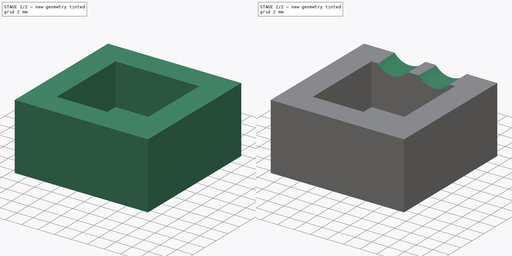
[diagram: build sequence overview — one tinted view per stage of 2, left to right]
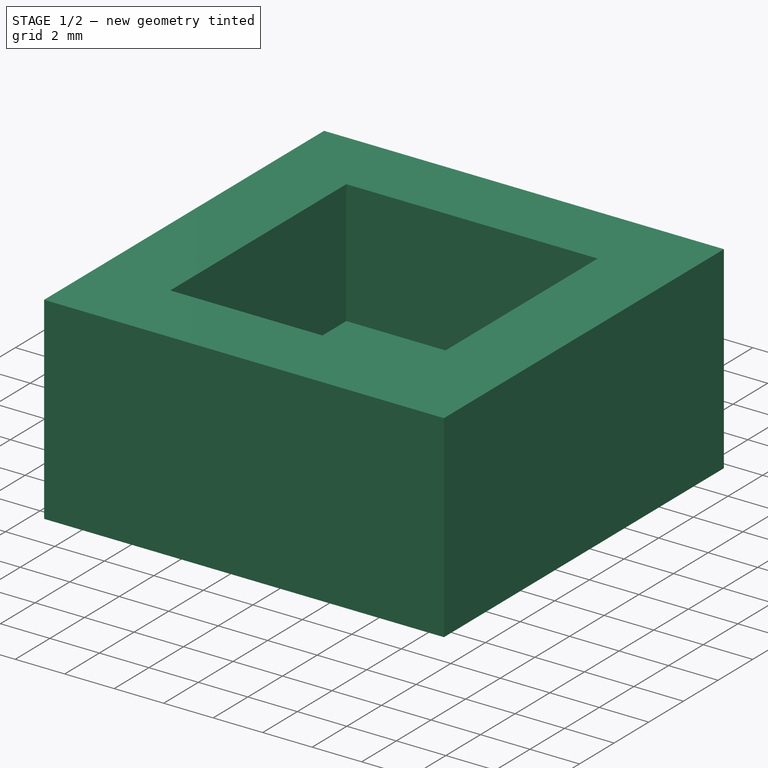
[diagram: stage 1 of 2 — iso view after this stage's code; geometry added in this stage tinted green]
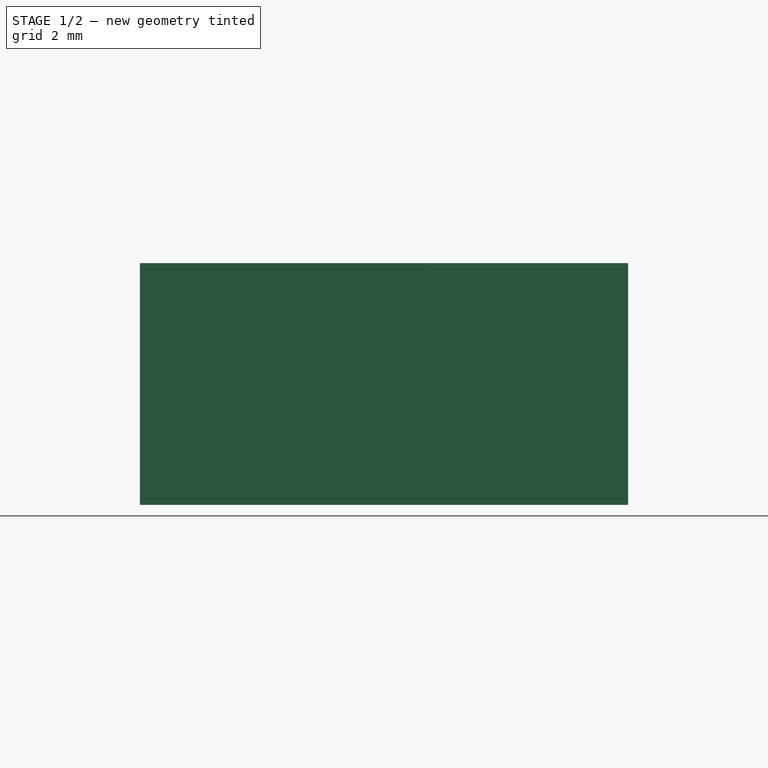
[diagram: stage 1 of 2 — front view after this stage's code; geometry added in this stage tinted green]
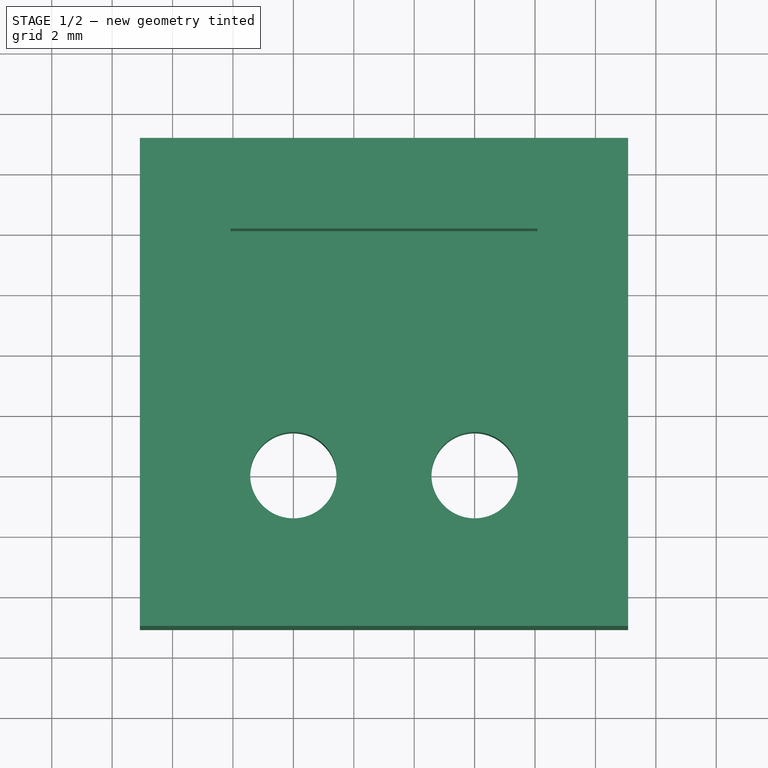
[diagram: stage 1 of 2 — top view after this stage's code; geometry added in this stage tinted green]
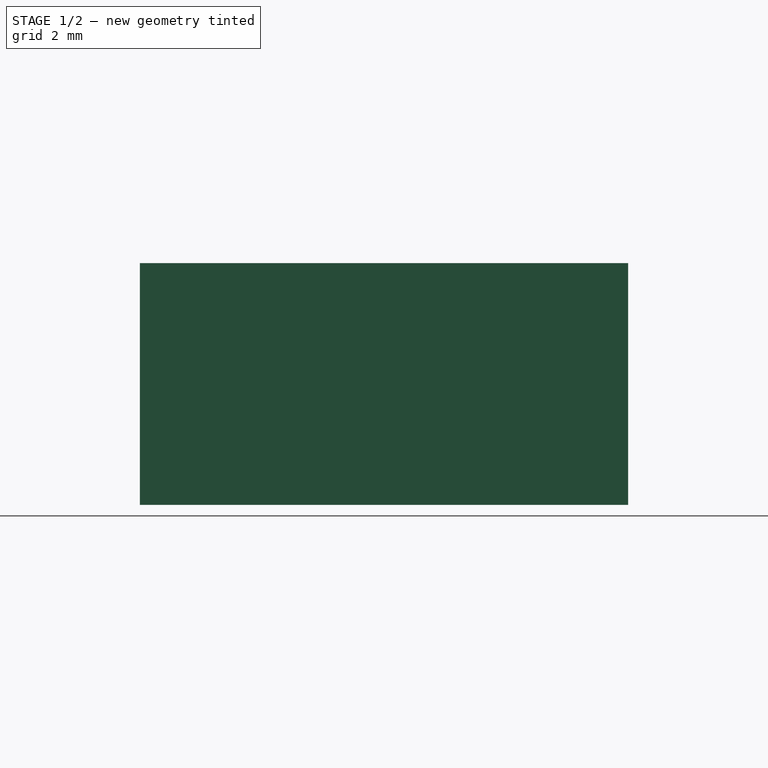
[diagram: stage 1 of 2 — right view after this stage's code; geometry added in this stage tinted green]
FCSTD DOCUMENT  (FreeCAD 1.0R39109 (Git))
Label: 5vpowerSupplyWireConn
License: All rights reserved
LicenseURL: http://en.wikipedia.org/wiki/All_rights_reserved
objects: Sketcher::SketchObject×4, PartDesign::Pocket×2, Spreadsheet::Sheet×1, PartDesign::Pad×1, PartDesign::Body×1
note: 18 computed .brp shape members not serialized (recipe doc carries the construction recipe); baked Part::Feature solids carry a one-line shape summary decoded from their .brp

FEATURE [Spreadsheet::Sheet] Spreadsheet
  cells = A2='plugHeadWH; B2(plugHeadWH)=10; A3='plugHeadDepth; B3(plugHeadDepth)=3; A5='plugThickness; B5(plugThickness)=3; A8='totalPlugSize; B8(totalPlugSize)==plugHeadWH + plugThickness; A9='poleToSide; B9(poleToSide)=2; A11='sizeAdj; B11(sizeAdj)=0.08; C11='0.05 is a bit tight; A13='poleRBig; B13(poleRBig)=1.35; C13='1.40 bit lose change to 1.35; A14='poleRSmall; B14(poleRSmall)=0.5; A16='totalHeight; B16(totalHeight)=11; A17='bottomHeight; B17(bottomHeight)==totalHeight - plugHeadDepth; A20='titenScrewCenterToSide; B20(titenScrewCenterToSide)=1.5; A21='titenScrewR; B21(titenScrewR)==5 / 2 - 0.1
FEATURE [Sketcher::SketchObject] Sketch
  ArcFitTolerance = 0
  AttachmentSupport = -> [XY_Plane]
  FullyConstrained = true
  MakeInternals = false
  MapMode = 5
  expr: Constraints[10] = Spreadsheet.sizeAdj
  expr: Constraints[11] = Spreadsheet.sizeAdj
  expr: Constraints[20] = Spreadsheet.plugThickness
  expr: Constraints[21] = Spreadsheet.plugThickness
  expr: Constraints[22] = Spreadsheet.plugThickness
  expr: Constraints[23] = Spreadsheet.plugThickness
  expr: Constraints[25] = Spreadsheet.poleToSide
  expr: Constraints[26] = Spreadsheet.plugHeadWH - Spreadsheet.poleToSide * 2
  expr: Constraints[27] = Spreadsheet.poleToSide
  expr: Constraints[8] = Spreadsheet.plugHeadWH + Spreadsheet.sizeAdj * 2
  expr: Constraints[9] = Spreadsheet.plugHeadWH + Spreadsheet.sizeAdj * 2
  sketch-geometry (9):
    g0: LineSegment StartX=-0.08 StartY=-0.08 StartZ=0 EndX=10.08 EndY=-0.08 EndZ=0
    g1: LineSegment StartX=10.08 StartY=-0.08 StartZ=0 EndX=10.08 EndY=10.08 EndZ=0
    g2: LineSegment StartX=10.08 StartY=10.08 StartZ=0 EndX=-0.08 EndY=10.08 EndZ=0
    g3: LineSegment StartX=-0.08 StartY=10.08 StartZ=0 EndX=-0.08 EndY=-0.08 EndZ=0
    g4: LineSegment StartX=-3.08 StartY=-3.08 StartZ=0 EndX=13.08 EndY=-3.08 EndZ=0
    g5: LineSegment StartX=13.08 StartY=-3.08 StartZ=0 EndX=13.08 EndY=13.08 EndZ=0
    g6: LineSegment StartX=13.08 StartY=13.08 StartZ=0 EndX=-3.08 EndY=13.08 EndZ=0
    g7: LineSegment StartX=-3.08 StartY=13.08 StartZ=0 EndX=-3.08 EndY=-3.08 EndZ=0
    g8: LineSegment StartX=2 StartY=2 StartZ=0 EndX=8 EndY=2 EndZ=0
  constraints (28):
    c: Coincident(g0,g1)
    c: Coincident(g1,g2)
    c: Coincident(g2,g3)
    c: Coincident(g3,g0)
    c: Horizontal(g0)
    c: Horizontal(g2)
    c: Vertical(g1)
    c: Vertical(g3)
    c: DistanceX(g2,g2) = 10.16
    c: DistanceY(g3,g3) = 10.16
    c: DistanceY(g0,g-1) = 0.08
    c: DistanceX(g0,g-1) = 0.08
    c: Coincident(g4,g5)
    c: Coincident(g5,g6)
    c: Coincident(g6,g7)
    c: Coincident(g7,g4)
    c: Horizontal(g4)
    c: Horizontal(g6)
    c: Vertical(g5)
    c: Vertical(g7)
    c: DistanceX(g4,g0) = 3
    c: DistanceY(g4,g0) = 3
    c: DistanceX(g0,g4) = 3
    c: DistanceY(g1,g5) = 3
    c: Horizontal(g8)
    c: DistanceY(g-1,g8) = 2
    c: DistanceX(g8,g8) = 6
    c: DistanceX(g-1,g8) = 2
FEATURE [Sketcher::SketchObject] Sketch001
  ArcFitTolerance = 0
  AttachmentSupport = -> [XY_Plane]
  ExternalGeometry = -> [Sketch]
  FullyConstrained = true
  MakeInternals = false
  MapMode = 5
  expr: Constraints[12] = Spreadsheet.poleRBig + Spreadsheet.sizeAdj
  sketch-geometry (6):
    g0: LineSegment StartX=-3.08 StartY=13.08 StartZ=0 EndX=13.08 EndY=13.08 EndZ=0
    g1: LineSegment StartX=13.08 StartY=13.08 StartZ=0 EndX=13.08 EndY=-3.08 EndZ=0
    g2: LineSegment StartX=13.08 StartY=-3.08 StartZ=0 EndX=-3.08 EndY=-3.08 EndZ=0
    g3: LineSegment StartX=-3.08 StartY=-3.08 StartZ=0 EndX=-3.08 EndY=13.08 EndZ=0
    g4: Circle CenterX=2 CenterY=2 CenterZ=0 NormalX=0 NormalY=0 NormalZ=1 AngleXU=0 Radius=1.43
    g5: Circle CenterX=8 CenterY=2 CenterZ=0 NormalX=0 NormalY=0 NormalZ=1 AngleXU=0 Radius=1.43
  constraints (14):
    c: Coincident(g0,g1)
    c: Coincident(g1,g2)
    c: Coincident(g2,g3)
    c: Coincident(g3,g0)
    c: Horizontal(g0)
    c: Horizontal(g2)
    c: Vertical(g1)
    c: Vertical(g3)
    c: Coincident(g0,g-4)
    c: Coincident(g1,g-3)
    c: Coincident(g4,g-7)
    c: Coincident(g5,g-7)
    c: Radius(g4) = 1.43
    c: Equal(g5,g4)
FEATURE [PartDesign::Pad] Pad
  Direction = (0,0,1)
  Length = 8
  Length2 = 10
  Profile = -> Sketch001
  ReferenceAxis = -> Sketch001 [N_Axis]
  Suppressed = false
  Type = 0
  expr: Length = Spreadsheet.bottomHeight
FEATURE [Sketcher::SketchObject] Sketch002
  ArcFitTolerance = 0
  AttachmentOffset = pos=(0,0,8) rot=(0,0,1;0rad)
  AttachmentSupport = -> [XY_Plane]
  ExternalGeometry = -> [Sketch]
  FullyConstrained = true
  MakeInternals = false
  MapMode = 5
  Placement = pos=(0,0,8) rot=(0,0,1;0rad)
  expr: .AttachmentOffset.Base.z = Spreadsheet.bottomHeight
  sketch-geometry (4):
    g0: LineSegment StartX=-0.08 StartY=10.08 StartZ=0 EndX=10.08 EndY=10.08 EndZ=0
    g1: LineSegment StartX=10.08 StartY=10.08 StartZ=0 EndX=10.08 EndY=-0.08 EndZ=0
    g2: LineSegment StartX=10.08 StartY=-0.08 StartZ=0 EndX=-0.08 EndY=-0.08 EndZ=0
    g3: LineSegment StartX=-0.08 StartY=-0.08 StartZ=0 EndX=-0.08 EndY=10.08 EndZ=0
  constraints (10):
    c: Coincident(g0,g1)
    c: Coincident(g1,g2)
    c: Coincident(g2,g3)
    c: Coincident(g3,g0)
    c: Horizontal(g0)
    c: Horizontal(g2)
    c: Vertical(g1)
    c: Vertical(g3)
    c: Coincident(g0,g-3)
    c: Coincident(g1,g-4)
FEATURE [PartDesign::Pocket] Pocket
  BaseFeature = -> Pad
  Direction = (0,0,-1)
  Length = 5
  Length2 = 5
  Profile = -> Sketch002
  ReferenceAxis = -> Sketch002 [N_Axis]
  Suppressed = false
  Type = 0
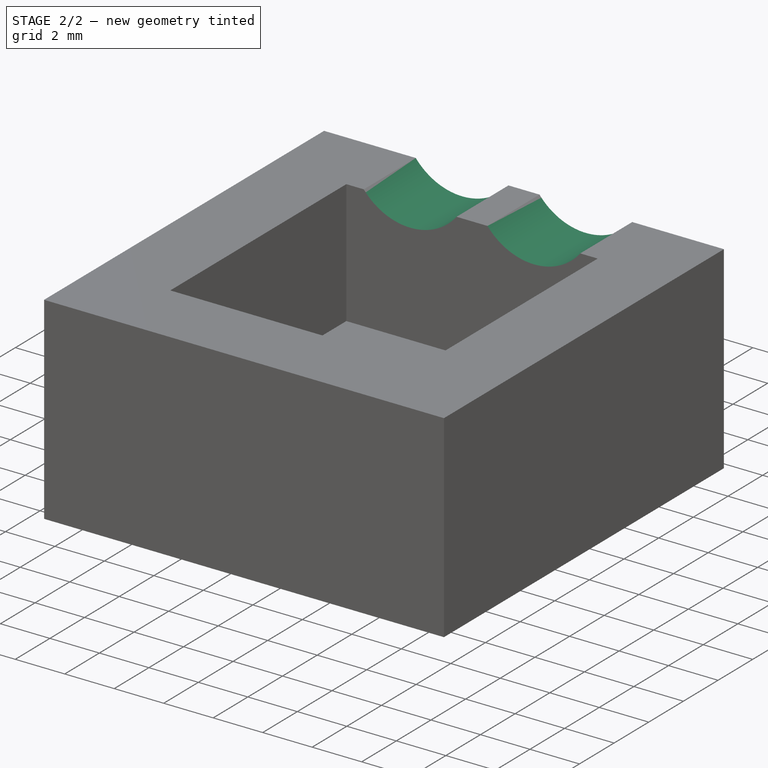
[diagram: stage 2 of 2 — iso view after this stage's code; geometry added in this stage tinted green]
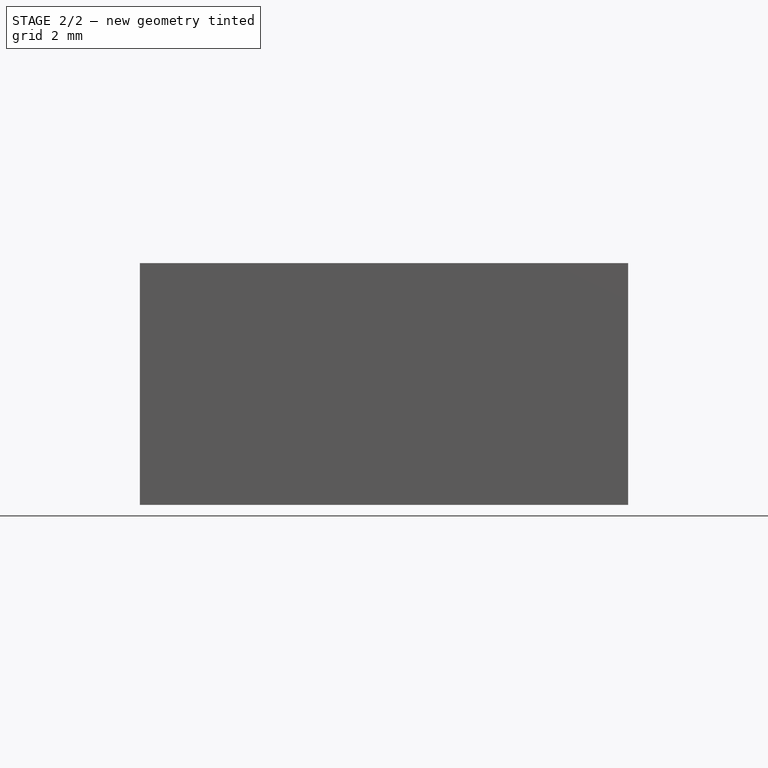
[diagram: stage 2 of 2 — front view after this stage's code; geometry added in this stage tinted green]
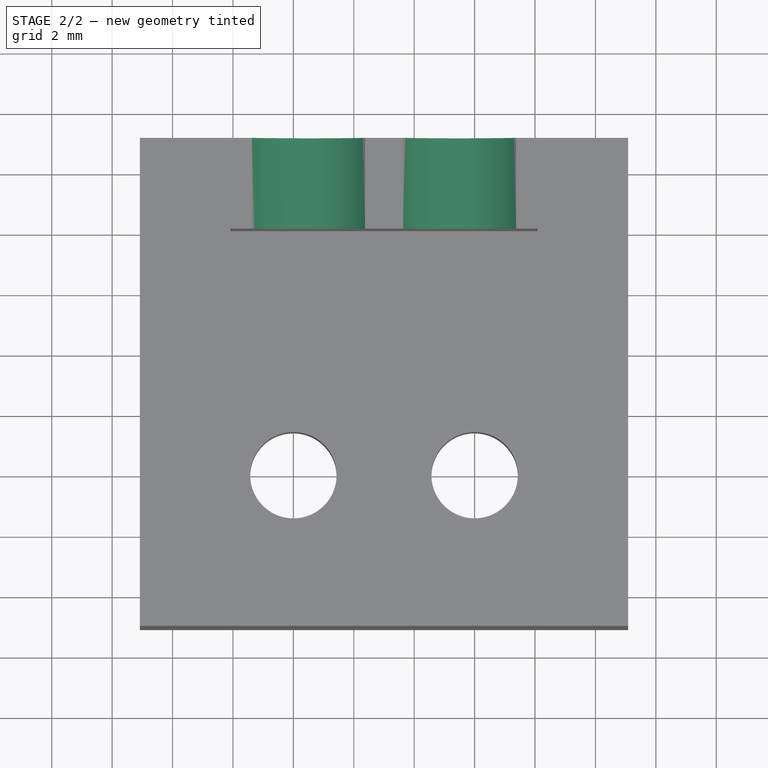
[diagram: stage 2 of 2 — top view after this stage's code; geometry added in this stage tinted green]
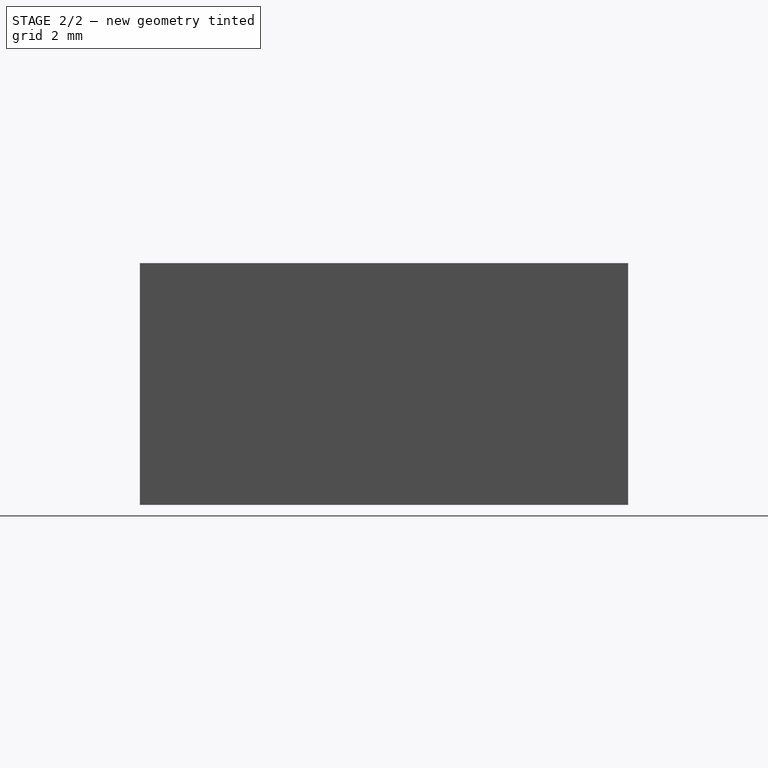
[diagram: stage 2 of 2 — right view after this stage's code; geometry added in this stage tinted green]
FEATURE [Sketcher::SketchObject] Sketch003
  ArcFitTolerance = 0
  AttachmentOffset = pos=(0,0,-10) rot=(0,0,1;0rad)
  AttachmentSupport = -> [XZ_Plane]
  FullyConstrained = true
  MakeInternals = false
  MapMode = 5
  Placement = pos=(0,10,-2.2e-15) rot=(1,0,0;1.5708rad)
  expr: .AttachmentOffset.Base.z = -Spreadsheet.plugHeadWH
  expr: Constraints[1] = Spreadsheet.bottomHeight + Spreadsheet.titenScrewCenterToSide
  expr: Constraints[2] = Spreadsheet.plugHeadWH / 2
  expr: Constraints[3] = Spreadsheet.plugHeadWH / 4
  expr: Constraints[6] = Spreadsheet.titenScrewR
  expr: Constraints[7] = Spreadsheet.titenScrewR
  sketch-geometry (3):
    g0: LineSegment [constr] StartX=2.5 StartY=9.5 StartZ=0 EndX=7.5 EndY=9.5 EndZ=0
    g1: Circle CenterX=2.5 CenterY=9.5 CenterZ=0 NormalX=0 NormalY=0 NormalZ=1 AngleXU=0 Radius=2.4
    g2: Circle CenterX=7.5 CenterY=9.5 CenterZ=0 NormalX=0 NormalY=0 NormalZ=1 AngleXU=0 Radius=2.4
  constraints (8):
    c: Horizontal(g0)
    c: DistanceY(g-1,g0) = 9.5
    c: DistanceX(g0,g0) = 5
    c: DistanceX(g-1,g0) = 2.5
    c: Coincident(g1,g0)
    c: Coincident(g2,g0)
    c: Radius(g1) = 2.4
    c: Radius(g2) = 2.4
FEATURE [PartDesign::Pocket] Pocket001
  BaseFeature = -> Pocket
  Direction = (0,1,-2e-16)
  Length = 1
  Length2 = 5
  Profile = -> Sketch003
  ReferenceAxis = -> Sketch003 [N_Axis]
  Suppressed = false
  Type = 1
FEATURE [PartDesign::Body] Body
  AllowCompound = false
  Group = -> [Sketch,Sketch001,Pad,Sketch002,Pocket,Sketch003,Pocket001]
  Origin = -> Origin
  Tip = -> Pocket001
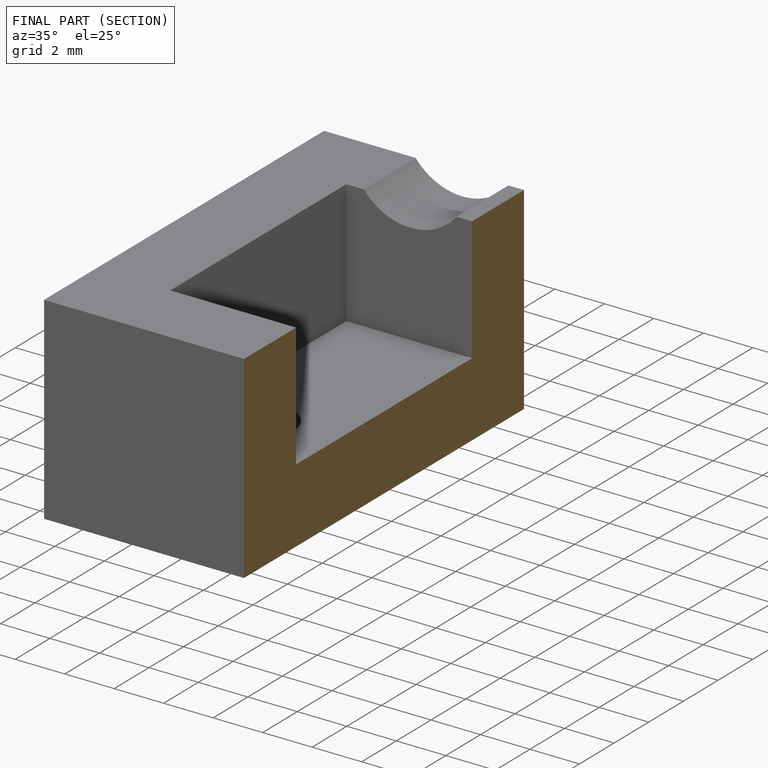
[diagram: finished part — half-section view (interior)]
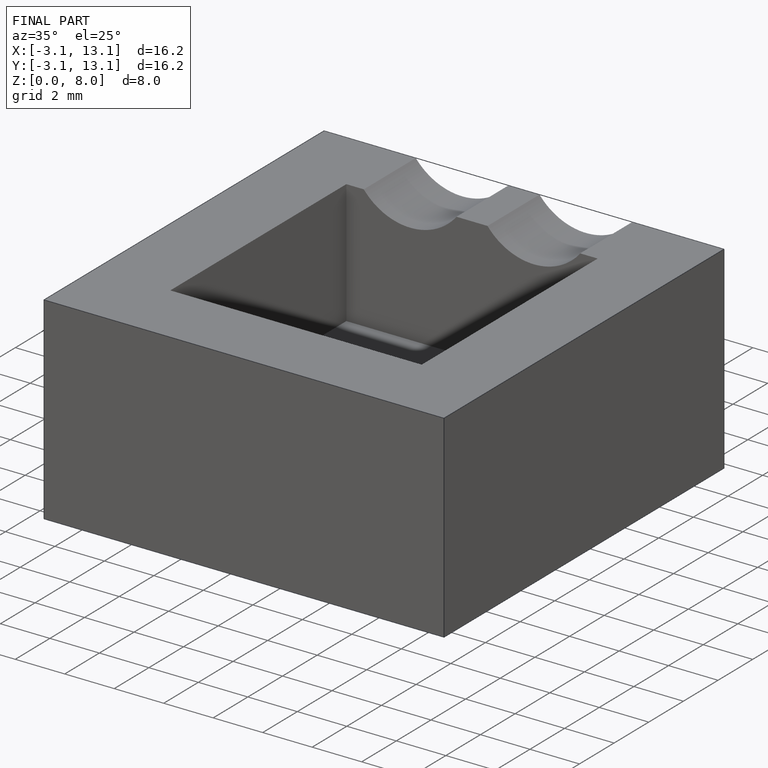
[diagram: finished part — iso view with bounding-box wireframe]
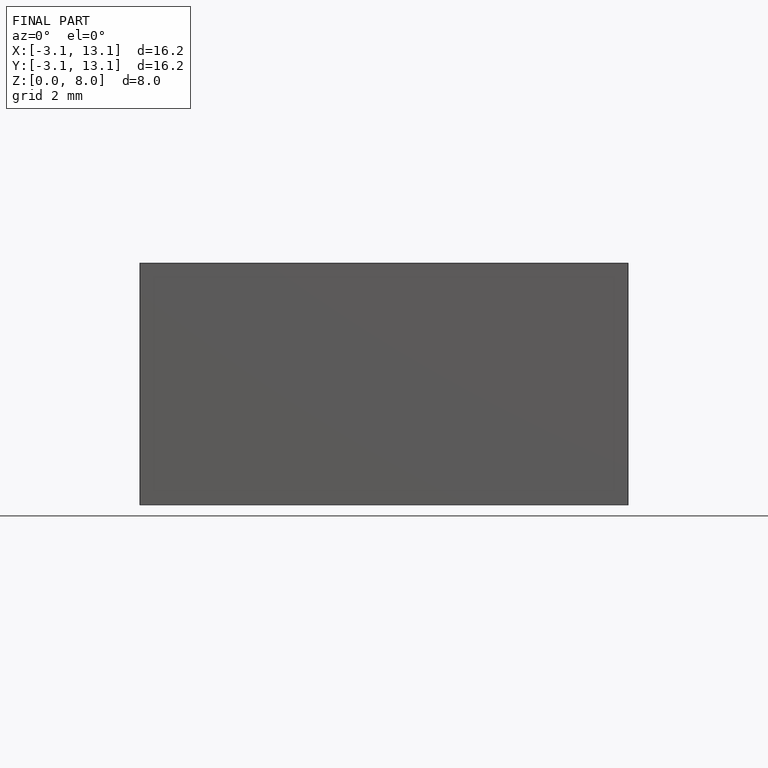
[diagram: finished part — front view with bounding-box wireframe]
